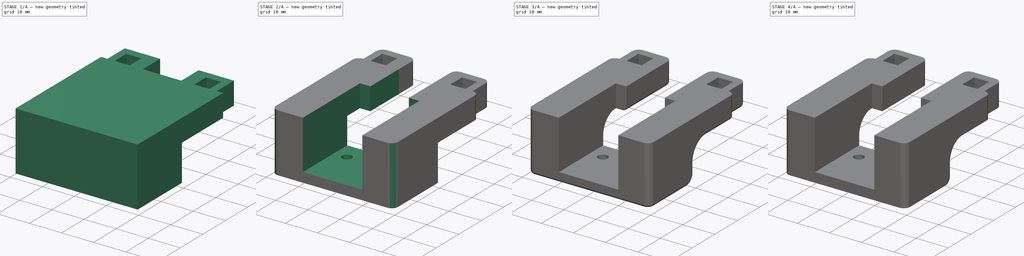
[diagram: build sequence overview — one tinted view per stage of 4, left to right]
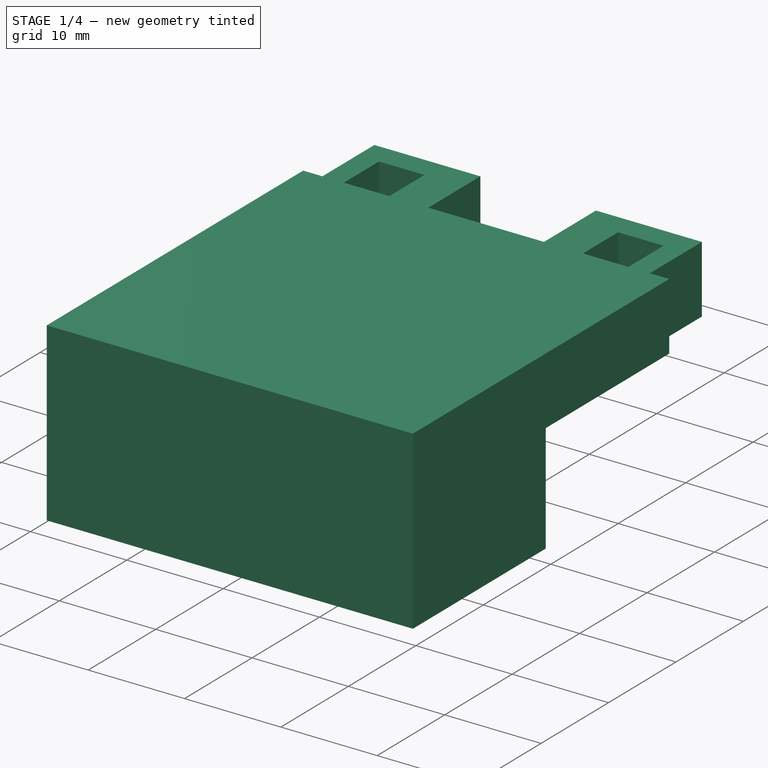
[diagram: stage 1 of 4 — iso view after this stage's code; geometry added in this stage tinted green]
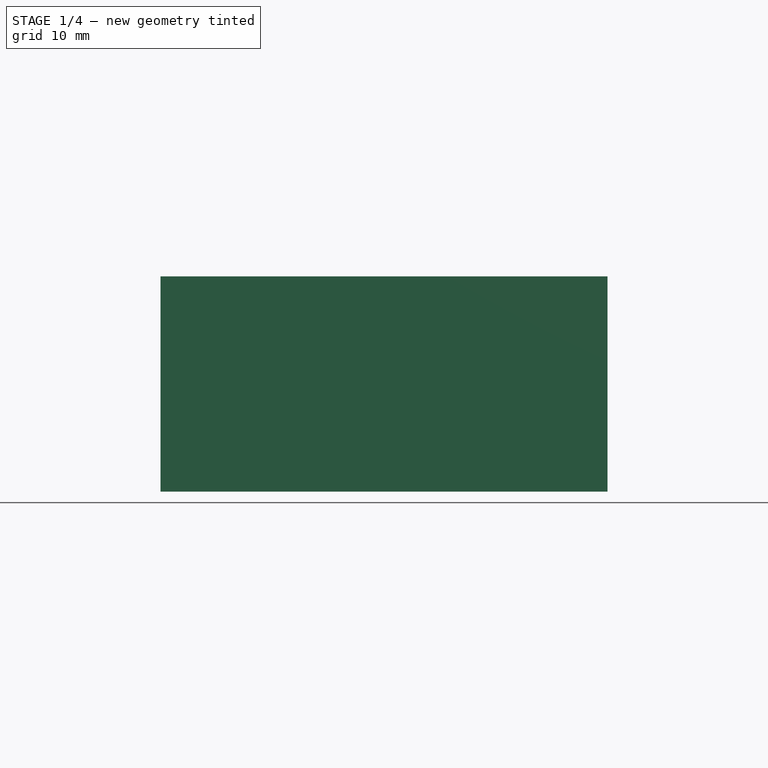
[diagram: stage 1 of 4 — front view after this stage's code; geometry added in this stage tinted green]
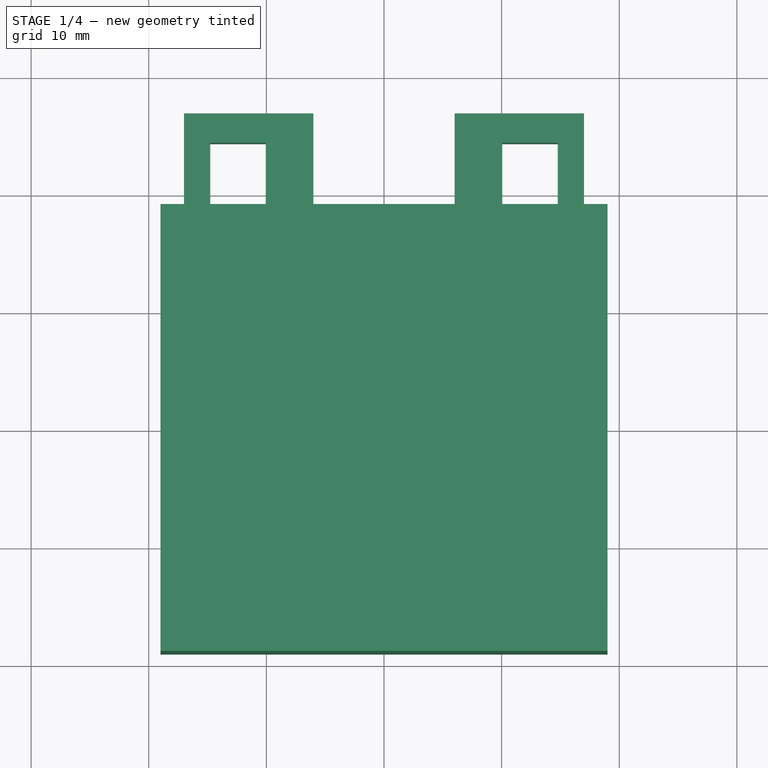
[diagram: stage 1 of 4 — top view after this stage's code; geometry added in this stage tinted green]
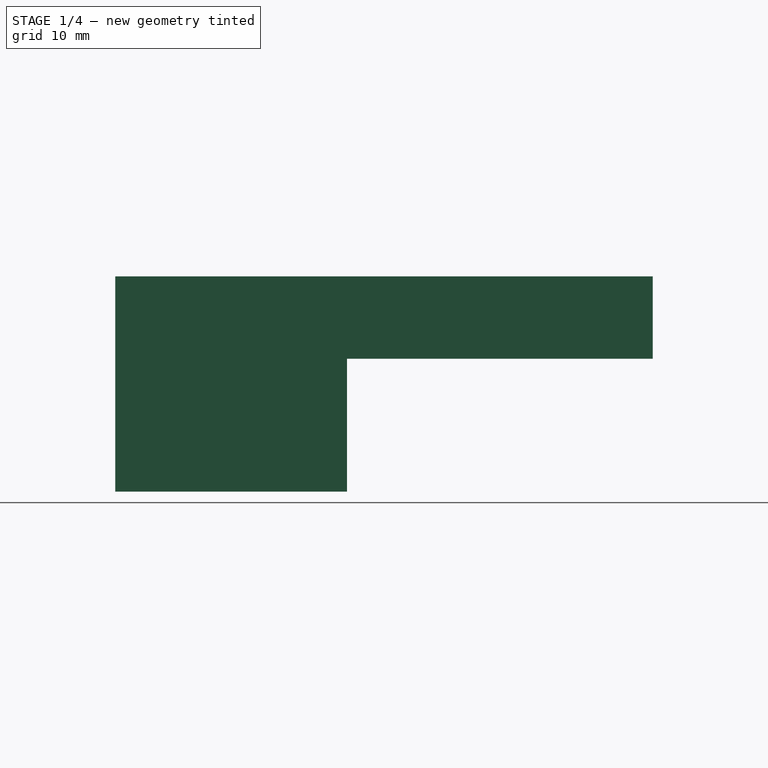
[diagram: stage 1 of 4 — right view after this stage's code; geometry added in this stage tinted green]
FCSTD DOCUMENT  (FreeCAD 0.22R38334 (Git))
Label: k1 btt eddy rear mount v4
License: All rights reserved
LicenseURL: https://en.wikipedia.org/wiki/All_rights_reserved
objects: PartDesign::Fillet×6, Sketcher::SketchObject×4, PartDesign::Pocket×3, PartDesign::Pad×1, PartDesign::Body×1
note: 39 computed .brp shape members not serialized (recipe doc carries the construction recipe); baked Part::Feature solids carry a one-line shape summary decoded from their .brp

FEATURE [Sketcher::SketchObject] Sketch
  AttachmentSupport = -> [XY_Plane]
  FullyConstrained = false
  MakeInternals = false
  MapMode = 5
  sketch-geometry (20):
    g0: LineSegment StartX=-19 StartY=19 StartZ=0 EndX=-19 EndY=-19 EndZ=0
    g1: LineSegment StartX=-19 StartY=-19 StartZ=0 EndX=19 EndY=-19 EndZ=0
    g2: LineSegment StartX=19 StartY=-19 StartZ=0 EndX=19 EndY=19 EndZ=0
    g3: LineSegment StartX=19 StartY=19 StartZ=0 EndX=17 EndY=19 EndZ=0
    g4: LineSegment StartX=-6 StartY=19 StartZ=0 EndX=-6 EndY=26.7 EndZ=0
    g5: LineSegment StartX=-6 StartY=26.7 StartZ=0 EndX=-17 EndY=26.7 EndZ=0
    g6: LineSegment StartX=-17 StartY=26.7 StartZ=0 EndX=-17 EndY=19 EndZ=0
    g7: LineSegment StartX=17 StartY=19 StartZ=0 EndX=17 EndY=26.7 EndZ=0
    g8: LineSegment StartX=17 StartY=26.7 StartZ=0 EndX=6 EndY=26.7 EndZ=0
    g9: LineSegment StartX=6 StartY=26.7 StartZ=0 EndX=6 EndY=19 EndZ=0
    g10: LineSegment StartX=6 StartY=19 StartZ=0 EndX=-6 EndY=19 EndZ=0
    g11: LineSegment StartX=-17 StartY=19 StartZ=0 EndX=-19 EndY=19 EndZ=0
    g12: LineSegment StartX=-14.77 StartY=24.2 StartZ=0 EndX=-14.77 EndY=19 EndZ=0
    g13: LineSegment StartX=-14.77 StartY=19 StartZ=0 EndX=-10.05 EndY=19 EndZ=0
    g14: LineSegment StartX=-10.05 StartY=19 StartZ=0 EndX=-10.05 EndY=24.2 EndZ=0
    g15: LineSegment StartX=-10.05 StartY=24.2 StartZ=0 EndX=-14.77 EndY=24.2 EndZ=0
    g16: LineSegment StartX=10.05 StartY=24.2 StartZ=0 EndX=10.05 EndY=19 EndZ=0
    g17: LineSegment StartX=10.05 StartY=19 StartZ=0 EndX=14.77 EndY=19 EndZ=0
    g18: LineSegment StartX=14.77 StartY=19 StartZ=0 EndX=14.77 EndY=24.2 EndZ=0
    g19: LineSegment StartX=14.77 StartY=24.2 StartZ=0 EndX=10.05 EndY=24.2 EndZ=0
  constraints (59):
    c: Coincident(g0,g1)
    c: Coincident(g1,g2)
    c: Coincident(g2,g3)
    c: Coincident(g11,g0)
    c: Vertical(g0)
    c: Vertical(g2)
    c: Horizontal(g1)
    c: DistanceY(g2,g2) = 38
    c: DistanceX(g1,g1) = 38
    c: Symmetric(g1,g0,g-1)
    c: Coincident(g4,g5)
    c: Coincident(g5,g6)
    c: Vertical(g4)
    c: Vertical(g6)
    c: PointOnObject(g6,g11)
    c: Coincident(g7,g8)
    c: Coincident(g8,g9)
    c: Vertical(g7)
    c: Vertical(g9)
    c: PointOnObject(g9,g10)
    c: DistanceX(g8,g8) = 11
    c: Equal(g8,g5)
    c: DistanceX(g4,g9) = 12
    c: Distance(g7,g2) = 2
    c: PointOnObject(g11,g6)
    c: Coincident(g4,g10)
    c: Horizontal(g10)
    c: Horizontal(g11)
    c: Horizontal(g8)
    c: Horizontal(g5)
    c: Horizontal(g4,g8)
    c: Horizontal(g9,g3)
    c: Horizontal(g3,g2)
    c: Horizontal(g4,g6)
    c: Coincident(g12,g13)
    c: Coincident(g13,g14)
    c: Coincident(g14,g15)
    c: Coincident(g15,g12)
    c: Vertical(g12)
    c: Vertical(g14)
    c: Horizontal(g13)
    c: Horizontal(g15)
    c: Coincident(g16,g17)
    c: Coincident(g17,g18)
    c: Coincident(g18,g19)
    c: Coincident(g19,g16)
    c: Vertical(g16)
    c: Vertical(g18)
    c: Horizontal(g17)
    c: Horizontal(g19)
    c: DistanceY(g9,g16) = 0
    c: Equal(g13,g19)
    c: Distance(g19,g19) = 4.72
    c: Equal(g16,g14)
    c: DistanceY(g14,g14) = 5.2
    c: DistanceX(g13,g16) = 20.1
    c: Symmetric(g13,g16,g-2)
    c: Coincident(g3,g7)
    c: DistanceY(g6,g6) = 7.7
FEATURE [PartDesign::Pad] Pad
  Direction = (0,0,1)
  Length = 18.3
  Length2 = 10
  Profile = -> Sketch
  ReferenceAxis = -> Sketch [N_Axis]
  Refine = true
  Suppressed = false
  Type = 0
FEATURE [Sketcher::SketchObject] Sketch001
  AttachmentSupport = -> [Pad]
  ExternalGeometry = -> [Pad]
  FullyConstrained = true
  MakeInternals = false
  MapMode = 5
  Placement = pos=(19,0,0) rot=(0.57735,0.57735,0.57735;2.0944rad)
  expr: Constraints[2] = Pad.Length - 7 mm
  sketch-geometry (4):
    g0: LineSegment StartX=26.7 StartY=11.3 StartZ=0 EndX=26.7 EndY=0 EndZ=0
    g1: LineSegment StartX=26.7 StartY=11.3 StartZ=0 EndX=0.7 EndY=11.3 EndZ=0
    g2: LineSegment StartX=26.7 StartY=0 StartZ=0 EndX=0.7 EndY=0 EndZ=0
    g3: LineSegment StartX=0.7 StartY=11.3 StartZ=0 EndX=0.7 EndY=0 EndZ=0
  constraints (11):
    c: PointOnObject(g0,g-3)
    c: Coincident(g0,g-3)
    c: DistanceY(g0,g0) = 11.3
    c: Coincident(g1,g0)
    c: Horizontal(g1)
    c: DistanceX(g1,g1) = 26
    c: Coincident(g2,g0)
    c: PointOnObject(g2,g-1)
    c: Coincident(g3,g1)
    c: Coincident(g3,g2)
    c: DistanceX(g2,g2) = 26
FEATURE [PartDesign::Pocket] Pocket
  BaseFeature = -> Pad
  Direction = (-1,0,0)
  Length = 5
  Length2 = 5
  Profile = -> Sketch001
  ReferenceAxis = -> Sketch001 [N_Axis]
  Refine = true
  Suppressed = false
  Type = 1
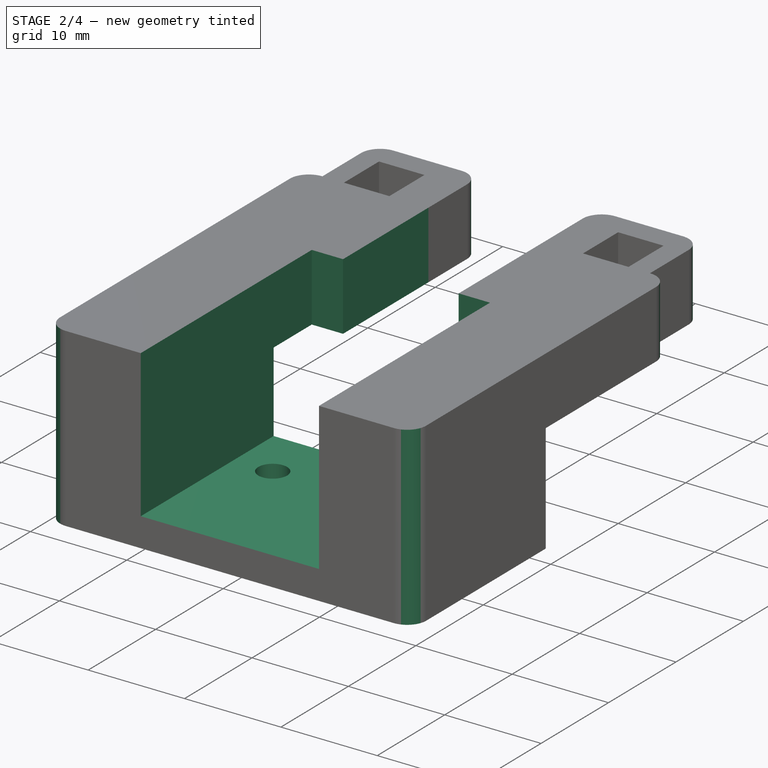
[diagram: stage 2 of 4 — iso view after this stage's code; geometry added in this stage tinted green]
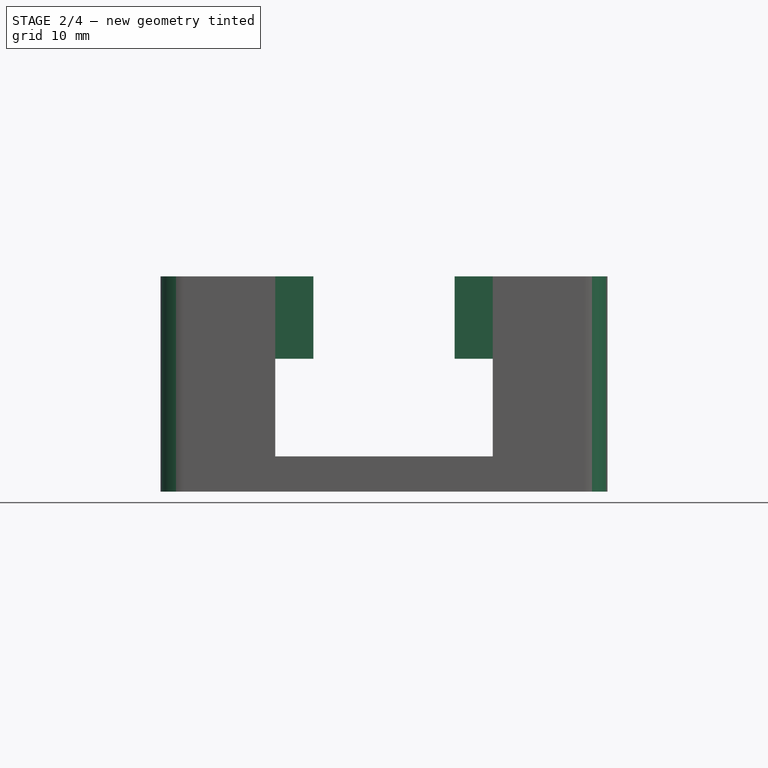
[diagram: stage 2 of 4 — front view after this stage's code; geometry added in this stage tinted green]
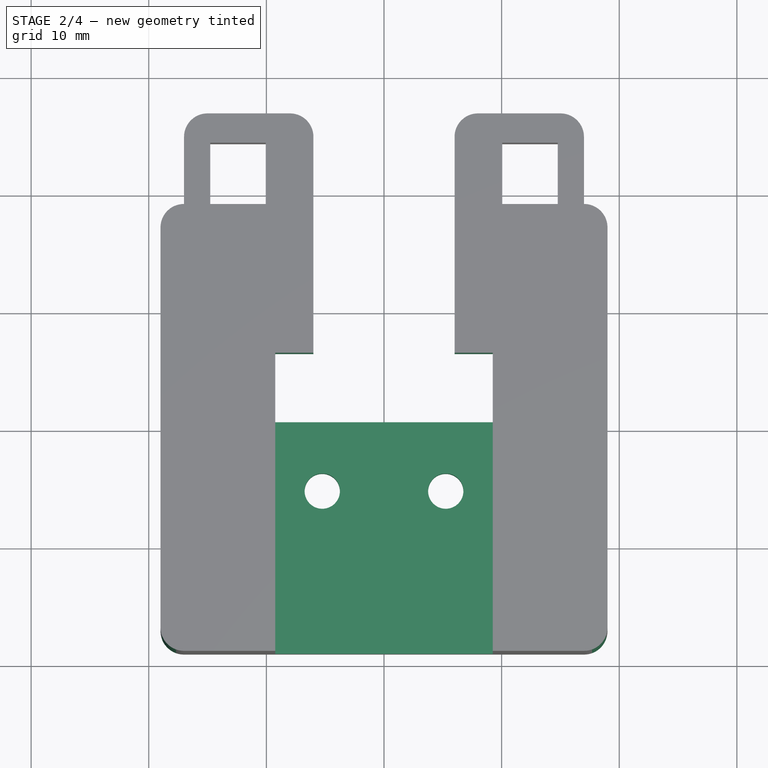
[diagram: stage 2 of 4 — top view after this stage's code; geometry added in this stage tinted green]
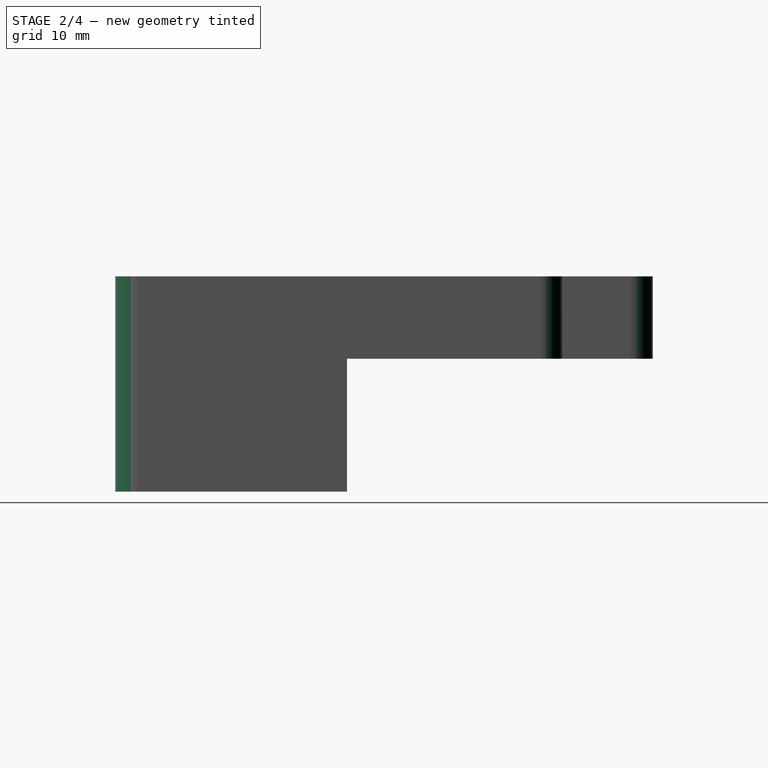
[diagram: stage 2 of 4 — right view after this stage's code; geometry added in this stage tinted green]
FEATURE [Sketcher::SketchObject] Sketch002
  AttachmentSupport = -> [Pocket]
  ExternalGeometry = -> [Pocket]
  FullyConstrained = true
  MakeInternals = false
  MapMode = 5
  Placement = pos=(0,0,18.3) rot=(0,0,1;0rad)
  sketch-geometry (8):
    g0: LineSegment StartX=-9.25 StartY=-19 StartZ=0 EndX=9.25 EndY=-19 EndZ=0
    g1: LineSegment StartX=9.25 StartY=-19 StartZ=0 EndX=9.25 EndY=6.35 EndZ=0
    g2: LineSegment StartX=9.25 StartY=6.35 StartZ=0 EndX=6 EndY=6.35 EndZ=0
    g3: LineSegment StartX=-9.25 StartY=6.35 StartZ=0 EndX=-9.25 EndY=-19 EndZ=0
    g4: LineSegment StartX=-6 StartY=19 StartZ=0 EndX=-6 EndY=6.35 EndZ=0
    g5: LineSegment StartX=6 StartY=6.35 StartZ=0 EndX=6 EndY=19 EndZ=0
    g6: LineSegment StartX=6 StartY=19 StartZ=0 EndX=-6 EndY=19 EndZ=0
    g7: LineSegment StartX=-6 StartY=6.35 StartZ=0 EndX=-9.25 EndY=6.35 EndZ=0
  constraints (21):
    c: Coincident(g0,g1)
    c: Coincident(g1,g2)
    c: Coincident(g7,g3)
    c: Coincident(g3,g0)
    c: Horizontal(g2)
    c: Vertical(g1)
    c: Vertical(g3)
    c: PointOnObject(g0,g-3)
    c: DistanceX(g0,g0) = 18.5
    c: Symmetric(g0,g0,g-2)
    c: Coincident(g5,g6)
    c: Coincident(g6,g4)
    c: Vertical(g4)
    c: Vertical(g5)
    c: Coincident(g4,g-4)
    c: Coincident(g5,g-4)
    c: DistanceY(g5,g5) = 12.65
    c: Coincident(g2,g5)
    c: Equal(g4,g5)
    c: Coincident(g7,g4)
    c: Horizontal(g7)
FEATURE [Sketcher::SketchObject] Sketch003
  FullyConstrained = false
  MakeInternals = false
  MapMode = 5
  Placement = pos=(0,0,4) rot=(0,0,1;0rad)
  sketch-geometry (2):
    g0: Circle CenterX=-5.25 CenterY=-5.15 CenterZ=0 NormalX=0 NormalY=0 NormalZ=1 AngleXU=0 Radius=1.5
    g1: Circle CenterX=5.25 CenterY=-5.15 CenterZ=0 NormalX=0 NormalY=0 NormalZ=1 AngleXU=0 Radius=1.5
  constraints (4):
    c: Equal(g1,g0)
    c: Diameter(g1) = 3
    c: DistanceX(g0,g1) = 10.5
    c: Symmetric(g0,g1,g-2)
FEATURE [PartDesign::Pocket] Pocket005
  BaseFeature = -> Pocket
  Direction = (0,0,-1)
  Length = 15.3
  Length2 = 5
  Profile = -> Sketch002
  ReferenceAxis = -> Sketch002 [N_Axis]
  Suppressed = false
  Type = 0
  expr: Length = Pad.Length - 3 mm
FEATURE [PartDesign::Pocket] Pocket006
  BaseFeature = -> Pocket005
  Direction = (0,0,-1)
  Length = 5
  Length2 = 5
  Profile = -> Sketch003
  ReferenceAxis = -> Sketch003 [N_Axis]
  Suppressed = false
  Type = 0
FEATURE [PartDesign::Fillet] Fillet
  Base = -> Pocket006 [Edge92,Edge91,Edge52,Edge51,Edge6,Edge58,Edge29,Edge4]
  BaseFeature = -> Pocket006
  Radius = 1.99
  SupportTransform = false
  Suppressed = false
  UseAllEdges = false
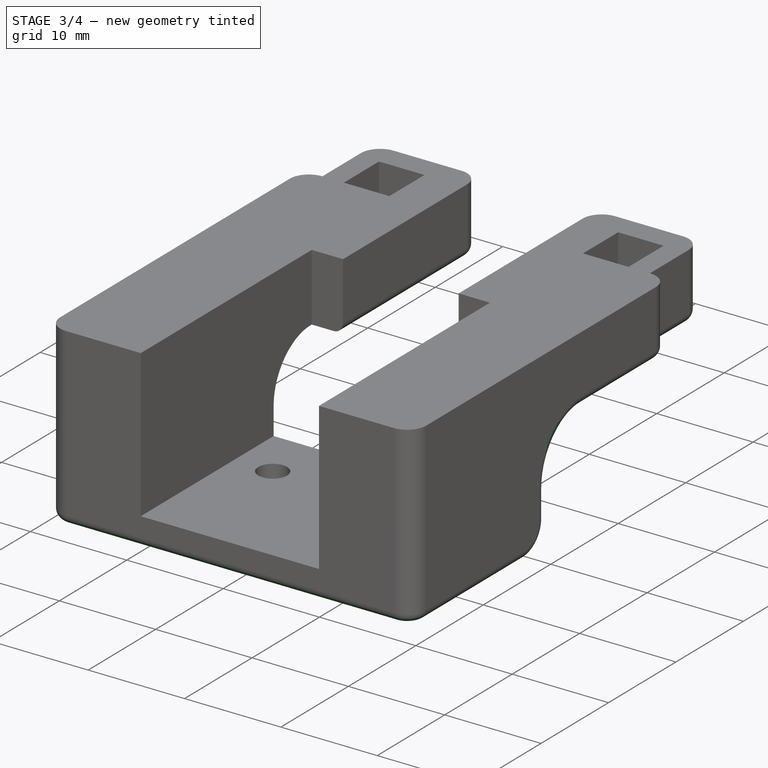
[diagram: stage 3 of 4 — iso view after this stage's code; geometry added in this stage tinted green]
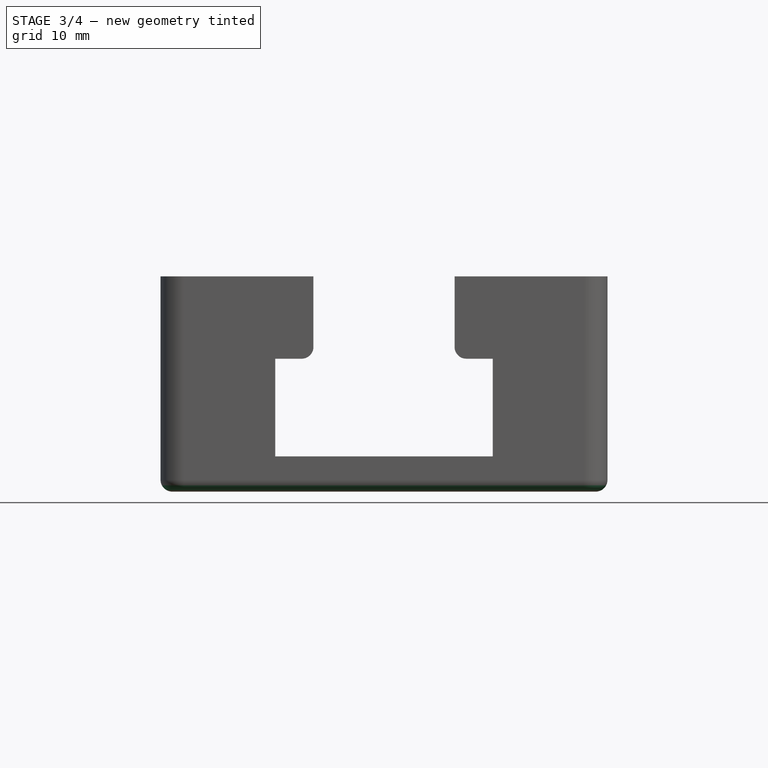
[diagram: stage 3 of 4 — front view after this stage's code; geometry added in this stage tinted green]
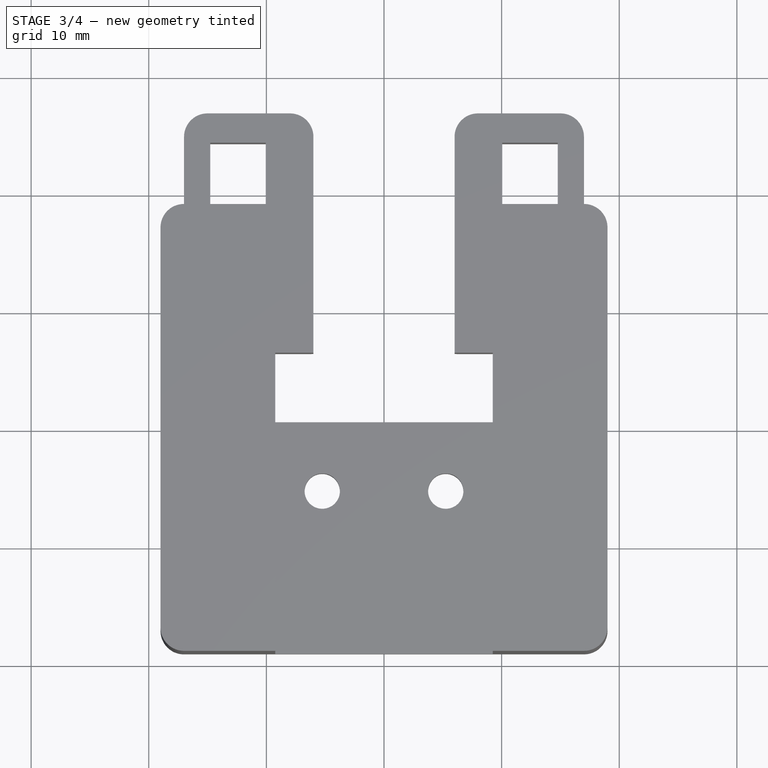
[diagram: stage 3 of 4 — top view after this stage's code; geometry added in this stage tinted green]
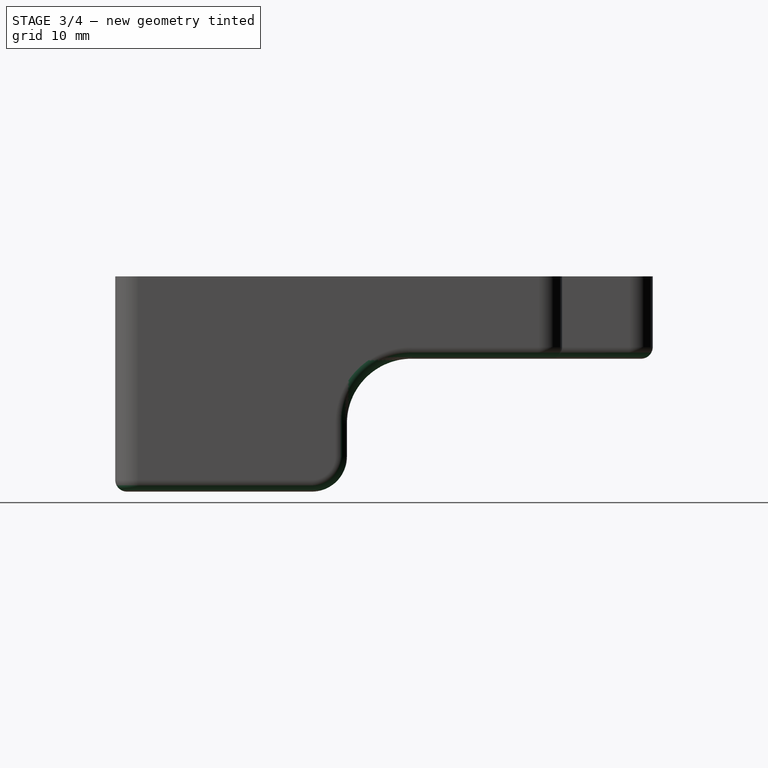
[diagram: stage 3 of 4 — right view after this stage's code; geometry added in this stage tinted green]
FEATURE [PartDesign::Fillet] Fillet001
  Base = -> Fillet [Edge8,Edge29]
  BaseFeature = -> Fillet
  Radius = 5.5
  SupportTransform = false
  Suppressed = false
  UseAllEdges = false
FEATURE [PartDesign::Fillet] Fillet003
  Base = -> Fillet001 [Edge29]
  BaseFeature = -> Fillet001
  Radius = 2.99
  SupportTransform = false
  Suppressed = false
  UseAllEdges = false
FEATURE [PartDesign::Fillet] Fillet004
  Base = -> Fillet003 [Edge4,Edge23,Edge22,Edge21,Edge20,Edge97,Edge95,Edge99,Edge100,Edge98,Edge96,Edge59,Edge92,Edge58,Edge16,Edge35,Edge33,Edge31,Edge34,Edge32,Edge30,Edge26,Edge5,Edge3,Edge2]
  BaseFeature = -> Fillet003
  Radius = 1
  SupportTransform = false
  Suppressed = false
  UseAllEdges = false
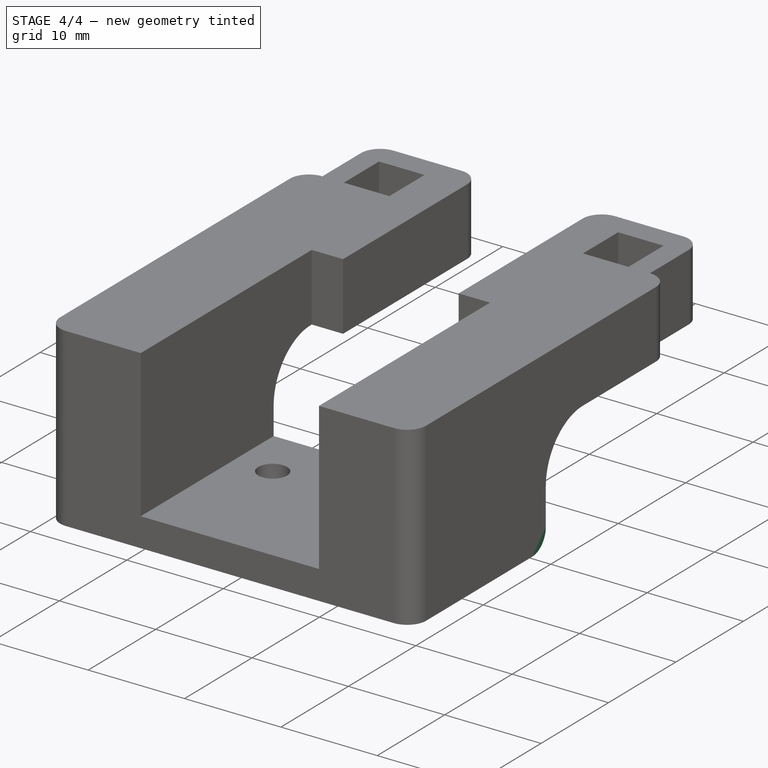
[diagram: stage 4 of 4 — iso view after this stage's code; geometry added in this stage tinted green]
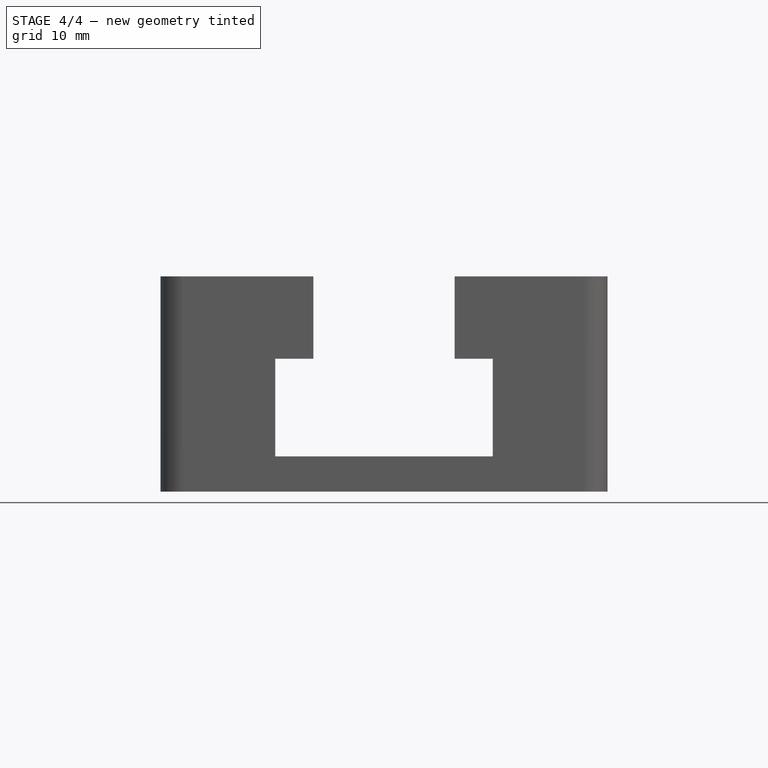
[diagram: stage 4 of 4 — front view after this stage's code; geometry added in this stage tinted green]
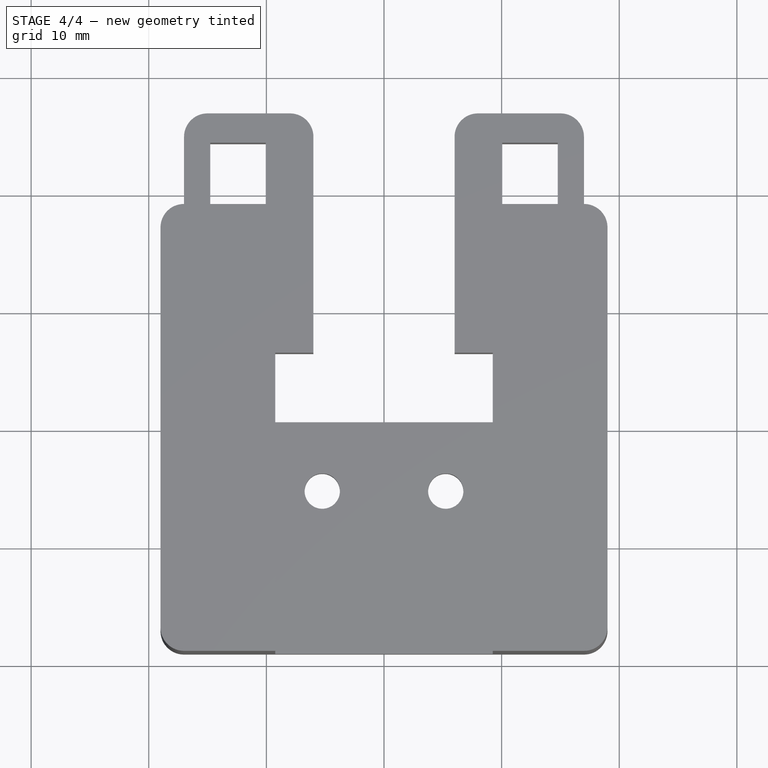
[diagram: stage 4 of 4 — top view after this stage's code; geometry added in this stage tinted green]
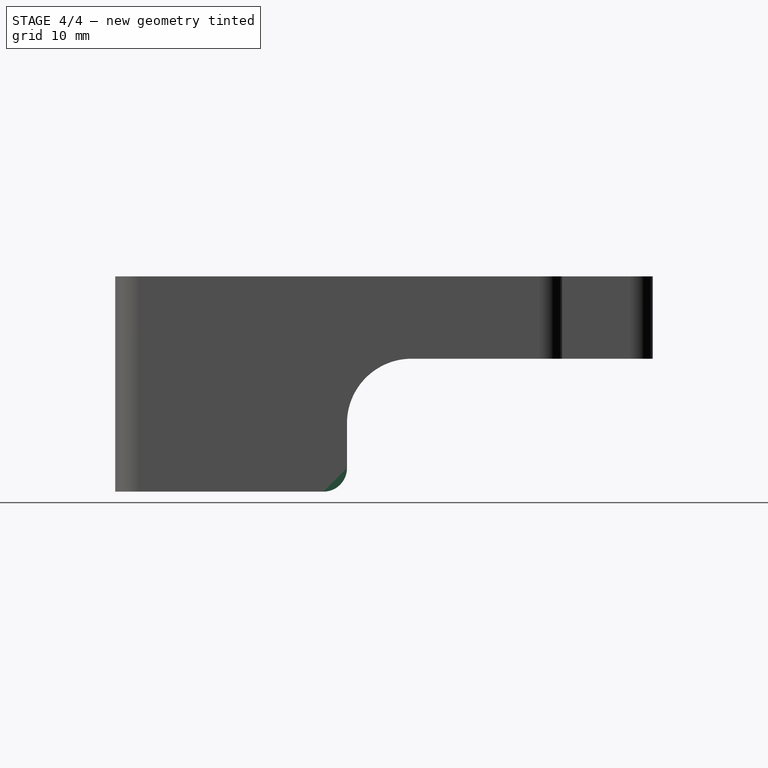
[diagram: stage 4 of 4 — right view after this stage's code; geometry added in this stage tinted green]
FEATURE [PartDesign::Fillet] Fillet002
  Base = -> Fillet001 [Edge29]
  BaseFeature = -> Fillet001
  Radius = 2
  SupportTransform = false
  Suppressed = false
  UseAllEdges = false
FEATURE [PartDesign::Fillet] Fillet005
  Base = -> Fillet004 [Edge102,Edge45,Edge20,Edge10,Edge3,Edge16,Edge17,Edge18,Edge19,Edge21,Edge23,Edge104,Edge105,Edge107,Edge109,Edge111,Edge113,Edge114]
  BaseFeature = -> Fillet004
  Radius = 1
  SupportTransform = false
  Suppressed = false
  UseAllEdges = false
FEATURE [PartDesign::Body] Body
  AllowCompound = false
  Group = -> [Sketch,Pad,Sketch001,Pocket,Sketch002,Sketch003,Pocket005,Pocket006,Fillet,Fillet001,Fillet002,Fillet003,Fillet004,Fillet005]
  Origin = -> Origin
  Tip = -> Fillet005
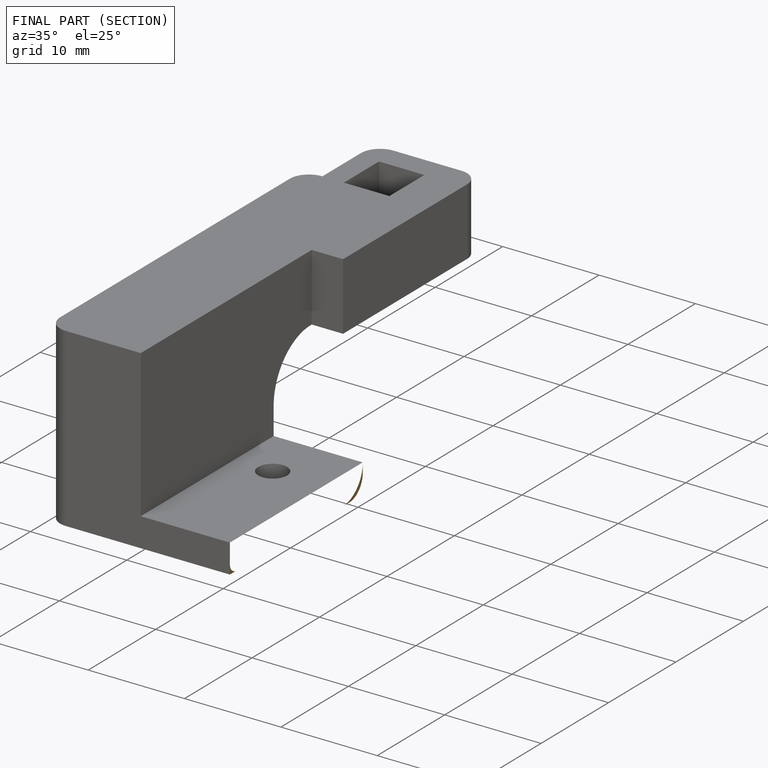
[diagram: finished part — half-section view (interior)]
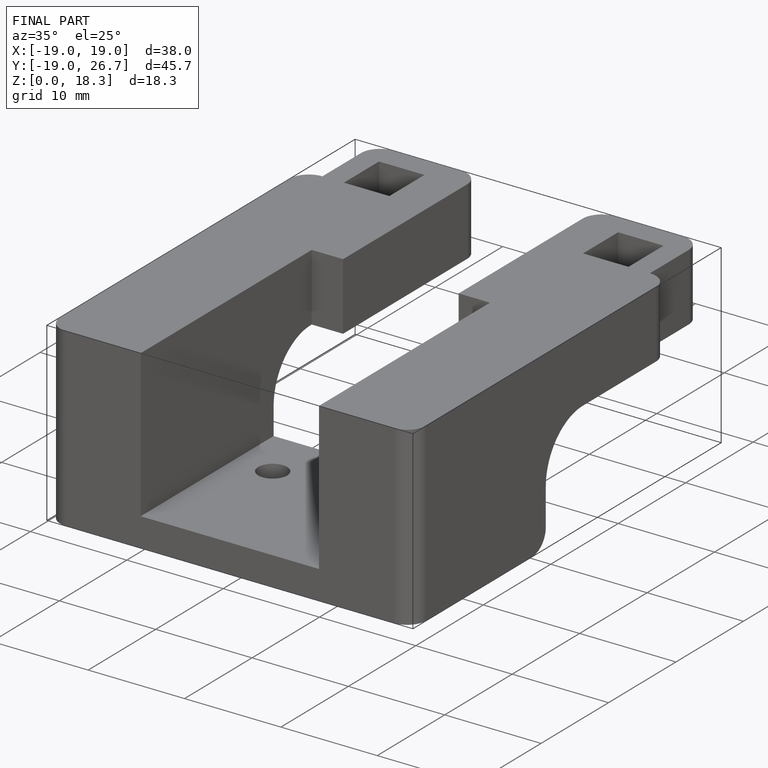
[diagram: finished part — iso view with bounding-box wireframe]
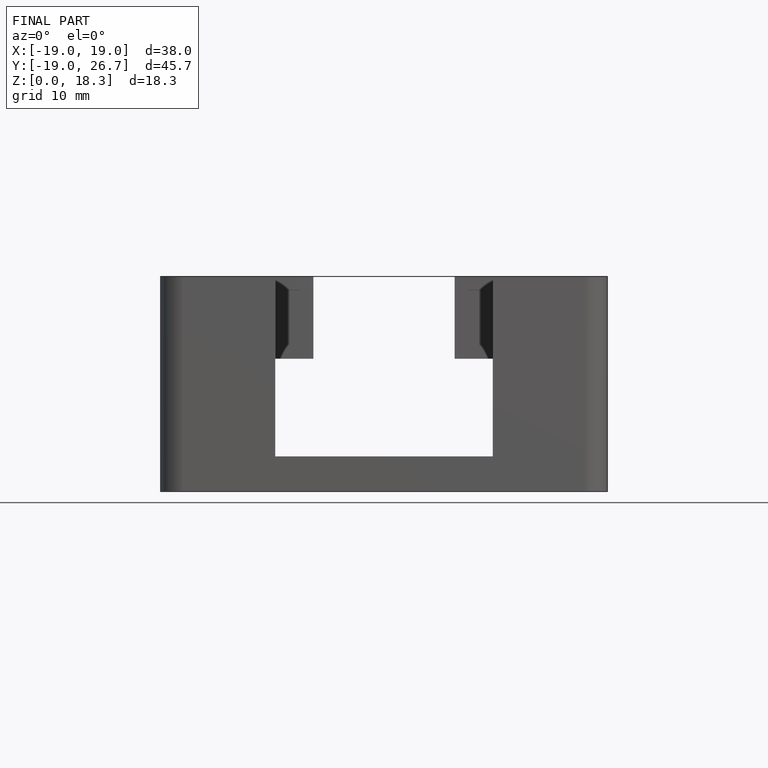
[diagram: finished part — front view with bounding-box wireframe]
